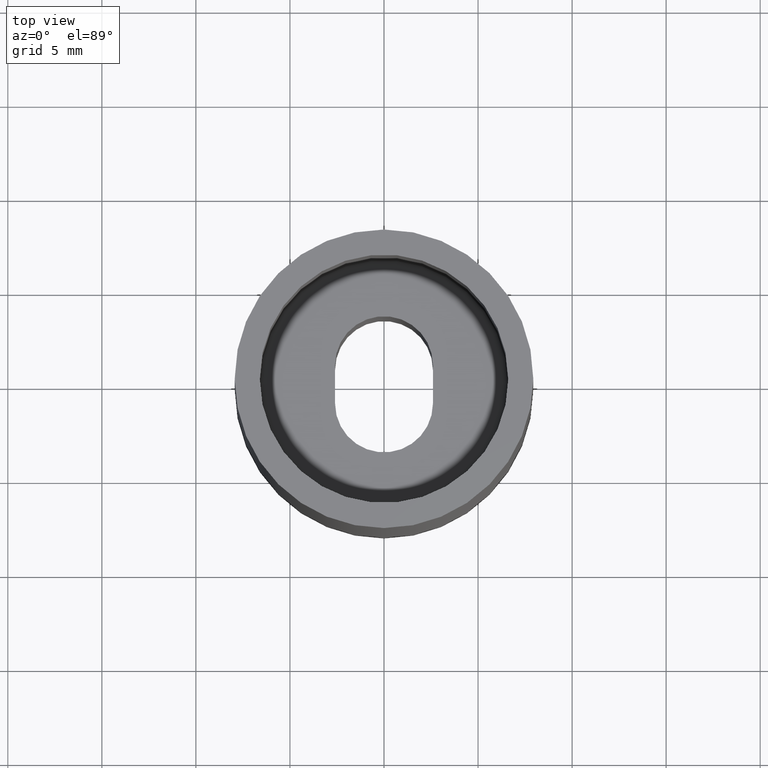
[diagram: clean part render]
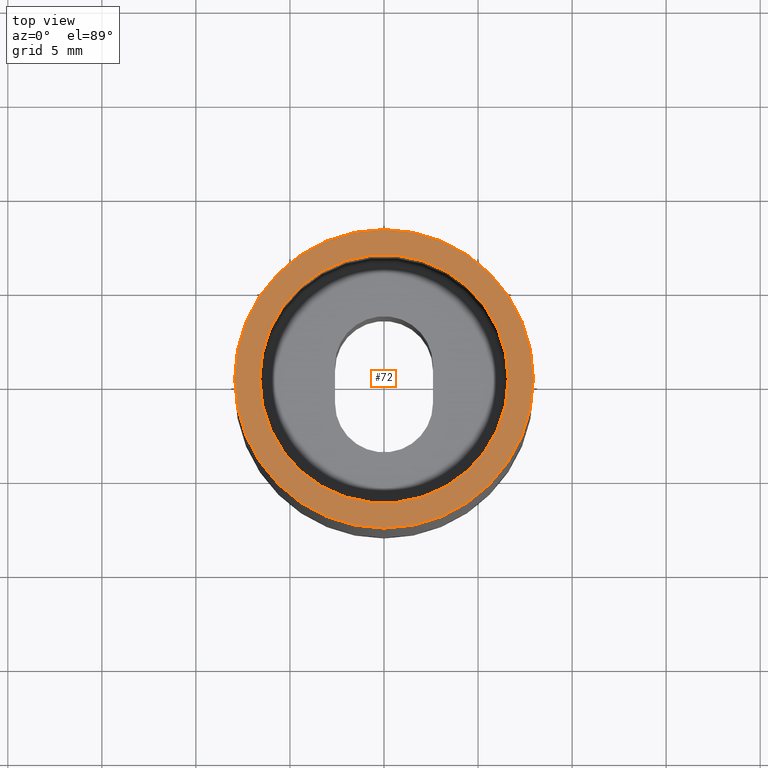
[diagram: same view with one face highlighted and labeled with its STEP entity id]
A machine part, top view. The second image highlights one B-rep face of the part: STEP entity #72.
In plain terms, the highlighted planar face has unit normal (0, 0, 1).
Its self-contained STEP definition (entity closure, byte-faithful):
#1 = PLANE ( 'NONE',  #367 ) ;
#4 = CARTESIAN_POINT ( 'NONE',  ( 0.3125000000000000000, 0.0000000000000000000, 0.0000000000000000000 ) ) ;
#8 = DIRECTION ( 'NONE',  ( 0.0000000000000000000, 0.0000000000000000000, 1.000000000000000000 ) ) ;
#11 = ORIENTED_EDGE ( 'NONE', *, *, #90, .F. ) ;
#35 = ORIENTED_EDGE ( 'NONE', *, *, #69, .T. ) ;
#41 = DIRECTION ( 'NONE',  ( 1.000000000000000000, 0.0000000000000000000, 0.0000000000000000000 ) ) ;
#60 = VERTEX_POINT ( 'NONE', #4 ) ;
#62 = DIRECTION ( 'NONE',  ( 1.000000000000000000, 0.0000000000000000000, 0.0000000000000000000 ) ) ;
#69 = EDGE_CURVE ( 'NONE', #370, #60, #112, .T. ) ;
#72 = ADVANCED_FACE ( 'NONE', ( #88, #73 ), #1, .T. ) ;
#73 = FACE_OUTER_BOUND ( 'NONE', #358, .T. ) ;
#86 = AXIS2_PLACEMENT_3D ( 'NONE', #254, #308, #62 ) ;
#88 = FACE_BOUND ( 'NONE', #226, .T. ) ;
#90 = EDGE_CURVE ( 'NONE', #95, #313, #415, .T. ) ;
#95 = VERTEX_POINT ( 'NONE', #282 ) ;
#103 = AXIS2_PLACEMENT_3D ( 'NONE', #348, #401, #41 ) ;
#112 = CIRCLE ( 'NONE', #86, 0.3125000000000000000 ) ;
#146 = DIRECTION ( 'NONE',  ( 0.0000000000000000000, 0.0000000000000000000, 1.000000000000000000 ) ) ;
#169 = DIRECTION ( 'NONE',  ( 1.000000000000000000, 0.0000000000000000000, 0.0000000000000000000 ) ) ;
#179 = DIRECTION ( 'NONE',  ( 1.000000000000000000, 0.0000000000000000000, 0.0000000000000000000 ) ) ;
#190 = EDGE_CURVE ( 'NONE', #60, #370, #305, .T. ) ;
#191 = ORIENTED_EDGE ( 'NONE', *, *, #190, .T. ) ;
#192 = CARTESIAN_POINT ( 'NONE',  ( -0.3125000000000000000, 3.827021247335478900E-017, 0.0000000000000000000 ) ) ;
#193 = CIRCLE ( 'NONE', #103, 0.2600000000000000100 ) ;
#226 = EDGE_LOOP ( 'NONE', ( #293, #11 ) ) ;
#231 = AXIS2_PLACEMENT_3D ( 'NONE', #346, #146, #179 ) ;
#254 = CARTESIAN_POINT ( 'NONE',  ( 0.0000000000000000000, 0.0000000000000000000, 0.0000000000000000000 ) ) ;
#270 = EDGE_CURVE ( 'NONE', #313, #95, #193, .T. ) ;
#276 = AXIS2_PLACEMENT_3D ( 'NONE', #364, #324, #169 ) ;
#282 = CARTESIAN_POINT ( 'NONE',  ( -0.2600000000000000100, 3.184081677783118700E-017, 0.0000000000000000000 ) ) ;
#293 = ORIENTED_EDGE ( 'NONE', *, *, #270, .F. ) ;
#305 = CIRCLE ( 'NONE', #231, 0.3125000000000000000 ) ;
#308 = DIRECTION ( 'NONE',  ( 0.0000000000000000000, 0.0000000000000000000, 1.000000000000000000 ) ) ;
#313 = VERTEX_POINT ( 'NONE', #352 ) ;
#324 = DIRECTION ( 'NONE',  ( -0.0000000000000000000, 0.0000000000000000000, 1.000000000000000000 ) ) ;
#346 = CARTESIAN_POINT ( 'NONE',  ( 0.0000000000000000000, 0.0000000000000000000, 0.0000000000000000000 ) ) ;
#348 = CARTESIAN_POINT ( 'NONE',  ( 0.0000000000000000000, 0.0000000000000000000, 0.0000000000000000000 ) ) ;
#352 = CARTESIAN_POINT ( 'NONE',  ( 0.2600000000000000100, 0.0000000000000000000, 0.0000000000000000000 ) ) ;
#358 = EDGE_LOOP ( 'NONE', ( #191, #35 ) ) ;
#364 = CARTESIAN_POINT ( 'NONE',  ( 0.0000000000000000000, 0.0000000000000000000, 0.0000000000000000000 ) ) ;
#367 = AXIS2_PLACEMENT_3D ( 'NONE', #407, #8, #384 ) ;
#370 = VERTEX_POINT ( 'NONE', #192 ) ;
#384 = DIRECTION ( 'NONE',  ( 1.000000000000000000, 0.0000000000000000000, -0.0000000000000000000 ) ) ;
#401 = DIRECTION ( 'NONE',  ( -0.0000000000000000000, 0.0000000000000000000, 1.000000000000000000 ) ) ;
#407 = CARTESIAN_POINT ( 'NONE',  ( 0.0000000000000000000, 0.0000000000000000000, 0.0000000000000000000 ) ) ;
#415 = CIRCLE ( 'NONE', #276, 0.2600000000000000100 ) ;